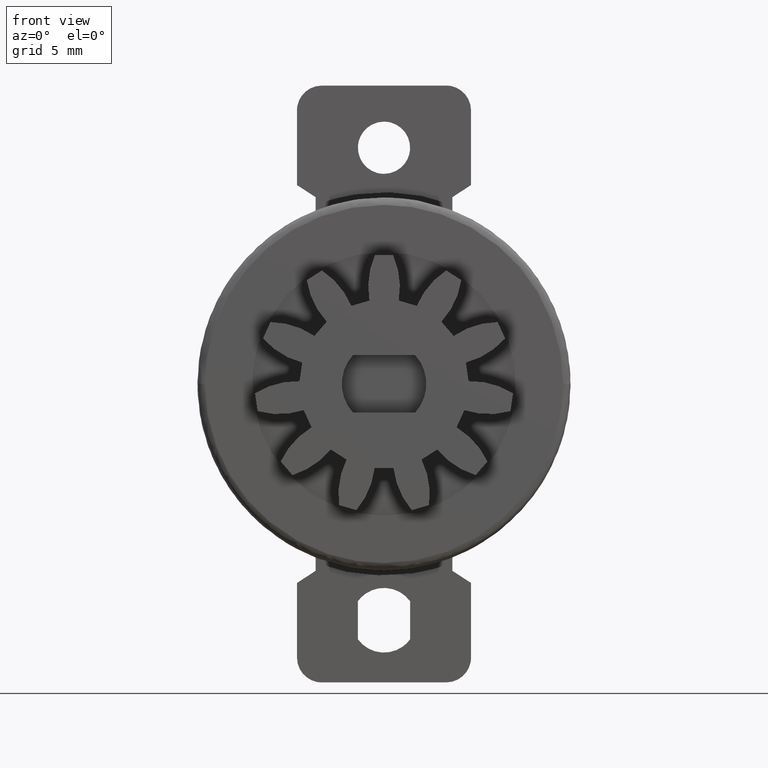
[diagram: clean part render]
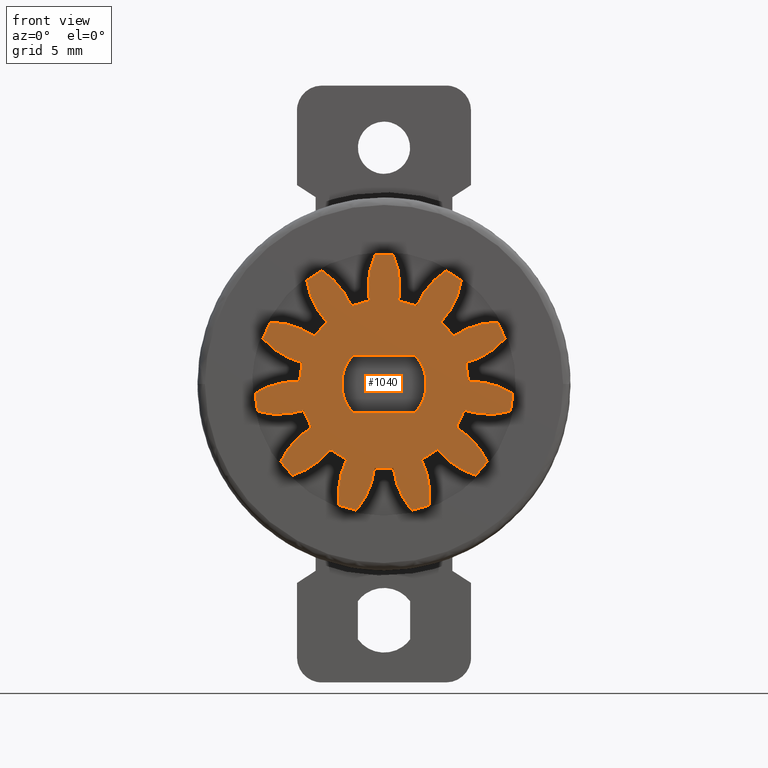
[diagram: same view with one face highlighted and labeled with its STEP entity id]
A machine part, front view. The second image highlights one B-rep face of the part: STEP entity #1040.
In plain terms, the highlighted face is a freeform B-spline surface patch.
Its self-contained STEP definition (entity closure, byte-faithful):
#250=CARTESIAN_POINT('',(-1.251998402554902,-8.0,-1.150000000000000));
#251=VERTEX_POINT('',#250);
#257=CARTESIAN_POINT('',(1.251998402554874,-8.0,-1.150000000000000));
#258=VERTEX_POINT('',#257);
#259=CARTESIAN_POINT('',(-1.251998402554902,-8.0,-1.150000000000000));
#260=CARTESIAN_POINT('',(1.251998402554874,-8.0,-1.150000000000000));
#261=QUASI_UNIFORM_CURVE('',1,(#259,#260),.UNSPECIFIED.,.F.,.U.);
#262=EDGE_CURVE('',#251,#258,#261,.T.);
#287=CARTESIAN_POINT('',(-1.251998402554904,-8.0,1.150000000000000));
#288=VERTEX_POINT('',#287);
#294=CARTESIAN_POINT('',(-1.251998402554897,-8.0,1.149999999999994));
#295=CARTESIAN_POINT('',(-2.308309654471209,-8.0,-8.673617E-016));
#296=CARTESIAN_POINT('',(-1.251998402554897,-8.0,-1.149999999999994));
#304=(BOUNDED_CURVE()B_SPLINE_CURVE(2,(#294,#295,#296),.UNSPECIFIED.,.F.,.U.)CURVE()GEOMETRIC_REPRESENTATION_ITEM()QUASI_UNIFORM_CURVE()RATIONAL_B_SPLINE_CURVE((1.0,0.736469648561704,1.0))REPRESENTATION_ITEM(''));
#305=EDGE_CURVE('',#288,#251,#304,.T.);
#317=CARTESIAN_POINT('',(1.251998402554874,-8.0,1.150000000000000));
#318=VERTEX_POINT('',#317);
#324=CARTESIAN_POINT('',(1.251998402554874,-8.0,1.150000000000000));
#325=CARTESIAN_POINT('',(-1.251998402554904,-8.0,1.150000000000000));
#326=QUASI_UNIFORM_CURVE('',1,(#324,#325),.UNSPECIFIED.,.F.,.U.);
#327=EDGE_CURVE('',#318,#288,#326,.T.);
#349=CARTESIAN_POINT('',(1.251998402554883,-8.0,-1.150000000000009));
#350=CARTESIAN_POINT('',(2.308309654471235,-8.000000000000002,-6.505213E-016));
#351=CARTESIAN_POINT('',(1.251998402554883,-8.0,1.150000000000009));
#359=(BOUNDED_CURVE()B_SPLINE_CURVE(2,(#349,#350,#351),.UNSPECIFIED.,.F.,.U.)CURVE()GEOMETRIC_REPRESENTATION_ITEM()QUASI_UNIFORM_CURVE()RATIONAL_B_SPLINE_CURVE((1.0,0.736469648561696,1.0))REPRESENTATION_ITEM(''));
#360=EDGE_CURVE('',#258,#318,#359,.T.);
#367=CARTESIAN_POINT('',(-5.704252825057263,-8.0,5.713397130031861));
#368=CARTESIAN_POINT('',(5.704253101278904,-8.0,5.713397130031861));
#369=CARTESIAN_POINT('',(-5.704252825057263,-8.0,-5.592857161430946));
#370=CARTESIAN_POINT('',(5.704253101278904,-8.0,-5.592857161430946));
#371=B_SPLINE_SURFACE_WITH_KNOTS('',1,1,((#367,#369),(#368,#370)),.UNSPECIFIED.,.F.,.F.,.U.,(2,2),(2,2),(0.0,11.408505926336170),(0.0,11.306254291462810),.UNSPECIFIED.);
#372=CARTESIAN_POINT('',(2.499333032538240,-8.0,4.559970876273580));
#373=VERTEX_POINT('',#372);
#374=CARTESIAN_POINT('',(1.313573442283980,-8.0,3.136004593702985));
#375=VERTEX_POINT('',#374);
#376=CARTESIAN_POINT('',(2.499333032538242,-8.0,4.559970876273580));
#377=CARTESIAN_POINT('',(1.687997695791056,-8.000000000000002,4.029899172562877));
#378=CARTESIAN_POINT('',(1.313573442283983,-8.0,3.136004593702983));
#386=(BOUNDED_CURVE()B_SPLINE_CURVE(2,(#376,#377,#378),.UNSPECIFIED.,.F.,.U.)CURVE()GEOMETRIC_REPRESENTATION_ITEM()QUASI_UNIFORM_CURVE()RATIONAL_B_SPLINE_CURVE((1.0,0.956011273868735,1.0))REPRESENTATION_ITEM(''));
#387=EDGE_CURVE('',#373,#375,#386,.T.);
#388=ORIENTED_EDGE('',*,*,#387,.T.);
#389=CARTESIAN_POINT('',(0.590403804067565,-8.0,3.348346360241505));
#390=VERTEX_POINT('',#389);
#391=CARTESIAN_POINT('',(1.313573442283979,-8.0,3.136004593702984));
#392=CARTESIAN_POINT('',(0.963829370197067,-8.0,3.282501357646542));
#393=CARTESIAN_POINT('',(0.590403804067566,-8.0,3.348346360241507));
#401=(BOUNDED_CURVE()B_SPLINE_CURVE(2,(#391,#392,#393),.UNSPECIFIED.,.F.,.U.)CURVE()GEOMETRIC_REPRESENTATION_ITEM()QUASI_UNIFORM_CURVE()RATIONAL_B_SPLINE_CURVE((1.0,0.993838464197460,1.0))REPRESENTATION_ITEM(''));
#402=EDGE_CURVE('',#375,#390,#401,.T.);
#403=ORIENTED_EDGE('',*,*,#402,.T.);
#404=CARTESIAN_POINT('',(0.362733663469456,-8.0,5.187333061351090));
#405=VERTEX_POINT('',#404);
#406=CARTESIAN_POINT('',(0.590403804067564,-8.0,3.348346360241504));
#407=CARTESIAN_POINT('',(0.758693978404037,-8.0,4.302767366376237));
#408=CARTESIAN_POINT('',(0.362733663469452,-8.0,5.187333061351088));
#416=(BOUNDED_CURVE()B_SPLINE_CURVE(2,(#406,#407,#408),.UNSPECIFIED.,.F.,.U.)CURVE()GEOMETRIC_REPRESENTATION_ITEM()QUASI_UNIFORM_CURVE()RATIONAL_B_SPLINE_CURVE((1.0,0.956011273868735,1.0))REPRESENTATION_ITEM(''));
#417=EDGE_CURVE('',#390,#405,#416,.T.);
#418=ORIENTED_EDGE('',*,*,#417,.T.);
#419=CARTESIAN_POINT('',(-0.362733663469452,-8.0,5.187333061351090));
#420=VERTEX_POINT('',#419);
#421=CARTESIAN_POINT('',(0.362733663469458,-8.0,5.187333061351086));
#422=CARTESIAN_POINT('',(1.029992E-015,-8.0,5.212697870022095));
#423=CARTESIAN_POINT('',(-0.362733663469451,-8.0,5.187333061351087));
#431=(BOUNDED_CURVE()B_SPLINE_CURVE(2,(#421,#422,#423),.UNSPECIFIED.,.F.,.U.)CURVE()GEOMETRIC_REPRESENTATION_ITEM()QUASI_UNIFORM_CURVE()RATIONAL_B_SPLINE_CURVE((1.0,0.997564050259824,1.0))REPRESENTATION_ITEM(''));
#432=EDGE_CURVE('',#405,#420,#431,.T.);
#433=ORIENTED_EDGE('',*,*,#432,.T.);
#434=CARTESIAN_POINT('',(-0.590403804067567,-8.0,3.348346360241505));
#435=VERTEX_POINT('',#434);
#436=CARTESIAN_POINT('',(-0.362733663469451,-8.0,5.187333061351090));
#437=CARTESIAN_POINT('',(-0.758693978404037,-8.000000000000002,4.302767366376239));
#438=CARTESIAN_POINT('',(-0.590403804067565,-8.0,3.348346360241505));
#446=(BOUNDED_CURVE()B_SPLINE_CURVE(2,(#436,#437,#438),.UNSPECIFIED.,.F.,.U.)CURVE()GEOMETRIC_REPRESENTATION_ITEM()QUASI_UNIFORM_CURVE()RATIONAL_B_SPLINE_CURVE((1.0,0.956011273868735,1.0))REPRESENTATION_ITEM(''));
#447=EDGE_CURVE('',#420,#435,#446,.T.);
#448=ORIENTED_EDGE('',*,*,#447,.T.);
#449=CARTESIAN_POINT('',(-1.313573425863900,-8.0,3.136004600580835));
#450=VERTEX_POINT('',#449);
#451=CARTESIAN_POINT('',(-0.590403804067568,-8.0,3.348346360241506));
#452=CARTESIAN_POINT('',(-0.963829361322090,-8.0,3.282501359211441));
#453=CARTESIAN_POINT('',(-1.313573425863900,-8.0,3.136004600580837));
#461=(BOUNDED_CURVE()B_SPLINE_CURVE(2,(#451,#452,#453),.UNSPECIFIED.,.F.,.U.)CURVE()GEOMETRIC_REPRESENTATION_ITEM()QUASI_UNIFORM_CURVE()RATIONAL_B_SPLINE_CURVE((1.0,0.993838464487634,1.0))REPRESENTATION_ITEM(''));
#462=EDGE_CURVE('',#435,#450,#461,.T.);
#463=ORIENTED_EDGE('',*,*,#462,.T.);
#464=CARTESIAN_POINT('',(-2.499333008662280,-8.0,4.559970889360059));
#465=VERTEX_POINT('',#464);
#466=CARTESIAN_POINT('',(-1.313573425863899,-8.0,3.136004600580835));
#467=CARTESIAN_POINT('',(-1.687997674690547,-8.0,4.029899181401207));
#468=CARTESIAN_POINT('',(-2.499333008662280,-8.0,4.559970889360058));
#476=(BOUNDED_CURVE()B_SPLINE_CURVE(2,(#466,#467,#468),.UNSPECIFIED.,.F.,.U.)CURVE()GEOMETRIC_REPRESENTATION_ITEM()QUASI_UNIFORM_CURVE()RATIONAL_B_SPLINE_CURVE((1.0,0.956011273868736,1.0))REPRESENTATION_ITEM(''));
#477=EDGE_CURVE('',#450,#465,#476,.T.);
#478=ORIENTED_EDGE('',*,*,#477,.T.);
#479=CARTESIAN_POINT('',(-3.109634960589925,-8.0,4.167753640976990));
#480=VERTEX_POINT('',#479);
#481=CARTESIAN_POINT('',(-2.499333008662279,-8.0,4.559970889360058));
#482=CARTESIAN_POINT('',(-2.818197235510442,-8.0,4.385200500079121));
#483=CARTESIAN_POINT('',(-3.109634960589921,-8.0,4.167753640976986));
#491=(BOUNDED_CURVE()B_SPLINE_CURVE(2,(#481,#482,#483),.UNSPECIFIED.,.F.,.U.)CURVE()GEOMETRIC_REPRESENTATION_ITEM()QUASI_UNIFORM_CURVE()RATIONAL_B_SPLINE_CURVE((1.0,0.997564050259824,1.0))REPRESENTATION_ITEM(''));
#492=EDGE_CURVE('',#465,#480,#491,.T.);
#493=ORIENTED_EDGE('',*,*,#492,.T.);
#494=CARTESIAN_POINT('',(-2.306931985027925,-8.0,2.497611822612775));
#495=VERTEX_POINT('',#494);
#496=CARTESIAN_POINT('',(-3.109634960589926,-8.0,4.167753640976989));
#497=CARTESIAN_POINT('',(-2.964505654421323,-8.0,3.209537316642833));
#498=CARTESIAN_POINT('',(-2.306931998105389,-8.0,2.497611810533708));
#506=(BOUNDED_CURVE()B_SPLINE_CURVE(2,(#496,#497,#498),.UNSPECIFIED.,.F.,.U.)CURVE()GEOMETRIC_REPRESENTATION_ITEM()QUASI_UNIFORM_CURVE()RATIONAL_B_SPLINE_CURVE((1.0,0.956011273868735,1.0))REPRESENTATION_ITEM(''));
#507=EDGE_CURVE('',#480,#495,#506,.T.);
#508=ORIENTED_EDGE('',*,*,#507,.T.);
#509=CARTESIAN_POINT('',(-2.800500375025975,-8.0,1.928003539799490));
#510=VERTEX_POINT('',#509);
#511=CARTESIAN_POINT('',(-2.306931985027925,-8.0,2.497611822612776));
#512=CARTESIAN_POINT('',(-2.585479067225136,-8.0,2.240330379820466));
#513=CARTESIAN_POINT('',(-2.800500375025976,-8.0,1.928003539799491));
#521=(BOUNDED_CURVE()B_SPLINE_CURVE(2,(#511,#512,#513),.UNSPECIFIED.,.F.,.U.)CURVE()GEOMETRIC_REPRESENTATION_ITEM()QUASI_UNIFORM_CURVE()RATIONAL_B_SPLINE_CURVE((1.0,0.993838464197460,1.0))REPRESENTATION_ITEM(''));
#522=EDGE_CURVE('',#495,#510,#521,.T.);
#523=ORIENTED_EDGE('',*,*,#522,.T.);
#524=CARTESIAN_POINT('',(-4.567879111273290,-8.0,2.484850181558865));
#525=VERTEX_POINT('',#524);
#526=CARTESIAN_POINT('',(-2.800500375025977,-8.0,1.928003539799488));
#527=CARTESIAN_POINT('',(-3.598761993761316,-8.0,2.477566482312406));
#528=CARTESIAN_POINT('',(-4.567879111273288,-8.0,2.484850181558858));
#536=(BOUNDED_CURVE()B_SPLINE_CURVE(2,(#526,#527,#528),.UNSPECIFIED.,.F.,.U.)CURVE()GEOMETRIC_REPRESENTATION_ITEM()QUASI_UNIFORM_CURVE()RATIONAL_B_SPLINE_CURVE((1.0,0.956011273868736,1.0))REPRESENTATION_ITEM(''));
#537=EDGE_CURVE('',#510,#525,#536,.T.);
#538=ORIENTED_EDGE('',*,*,#537,.T.);
#539=CARTESIAN_POINT('',(-4.869249130954301,-8.0,1.824941889677825));
#540=VERTEX_POINT('',#539);
#541=CARTESIAN_POINT('',(-4.567879111273292,-8.0,2.484850181558866));
#542=CARTESIAN_POINT('',(-4.741636762626956,-8.0,2.165432957964168));
#543=CARTESIAN_POINT('',(-4.869249130954294,-8.0,1.824941889677822));
#551=(BOUNDED_CURVE()B_SPLINE_CURVE(2,(#541,#542,#543),.UNSPECIFIED.,.F.,.U.)CURVE()GEOMETRIC_REPRESENTATION_ITEM()QUASI_UNIFORM_CURVE()RATIONAL_B_SPLINE_CURVE((1.0,0.997564050259824,1.0))REPRESENTATION_ITEM(''));
#552=EDGE_CURVE('',#525,#540,#551,.T.);
#553=ORIENTED_EDGE('',*,*,#552,.T.);
#554=CARTESIAN_POINT('',(-3.291025579463670,-8.0,0.853903176780484));
#555=VERTEX_POINT('',#554);
#556=CARTESIAN_POINT('',(-4.869249130954298,-8.0,1.824941889677827));
#557=CARTESIAN_POINT('',(-4.229107732881661,-8.000000000000002,1.097301848034262));
#558=CARTESIAN_POINT('',(-3.291025583934694,-8.0,0.853903159548721));
#566=(BOUNDED_CURVE()B_SPLINE_CURVE(2,(#556,#557,#558),.UNSPECIFIED.,.F.,.U.)CURVE()GEOMETRIC_REPRESENTATION_ITEM()QUASI_UNIFORM_CURVE()RATIONAL_B_SPLINE_CURVE((1.0,0.956011273868735,1.0))REPRESENTATION_ITEM(''));
#567=EDGE_CURVE('',#540,#555,#566,.T.);
#568=ORIENTED_EDGE('',*,*,#567,.T.);
#569=CARTESIAN_POINT('',(-3.398288243948785,-8.0,0.107874978746175));
#570=VERTEX_POINT('',#569);
#571=CARTESIAN_POINT('',(-3.291025579463672,-8.0,0.853903176780484));
#572=CARTESIAN_POINT('',(-3.386257447049208,-8.0,0.486870331925909));
#573=CARTESIAN_POINT('',(-3.398288243948784,-8.0,0.107874978746173));
#581=(BOUNDED_CURVE()B_SPLINE_CURVE(2,(#571,#572,#573),.UNSPECIFIED.,.F.,.U.)CURVE()GEOMETRIC_REPRESENTATION_ITEM()QUASI_UNIFORM_CURVE()RATIONAL_B_SPLINE_CURVE((1.0,0.993838464197460,1.0))REPRESENTATION_ITEM(''));
#582=EDGE_CURVE('',#555,#570,#581,.T.);
#583=ORIENTED_EDGE('',*,*,#582,.T.);
#584=CARTESIAN_POINT('',(-5.186155873497579,-8.0,-0.379192900495937));
#585=VERTEX_POINT('',#584);
#586=CARTESIAN_POINT('',(-3.398288243948785,-8.0,0.107874978746173));
#587=CARTESIAN_POINT('',(-4.366944809302277,-8.0,0.138623932012841));
#588=CARTESIAN_POINT('',(-5.186155873497574,-8.0,-0.379192900495943));
#596=(BOUNDED_CURVE()B_SPLINE_CURVE(2,(#586,#587,#588),.UNSPECIFIED.,.F.,.U.)CURVE()GEOMETRIC_REPRESENTATION_ITEM()QUASI_UNIFORM_CURVE()RATIONAL_B_SPLINE_CURVE((1.0,0.956011273868736,1.0))REPRESENTATION_ITEM(''));
#597=EDGE_CURVE('',#570,#585,#596,.T.);
#598=ORIENTED_EDGE('',*,*,#597,.T.);
#599=CARTESIAN_POINT('',(-5.082911109217150,-8.0,-1.097276016231550));
#600=VERTEX_POINT('',#599);
#601=CARTESIAN_POINT('',(-5.186155873497583,-8.0,-0.379192900495937));
#602=CARTESIAN_POINT('',(-5.159640122854289,-8.0,-0.741844246971735));
#603=CARTESIAN_POINT('',(-5.082911109217140,-8.0,-1.097276016231547));
#611=(BOUNDED_CURVE()B_SPLINE_CURVE(2,(#601,#602,#603),.UNSPECIFIED.,.F.,.U.)CURVE()GEOMETRIC_REPRESENTATION_ITEM()QUASI_UNIFORM_CURVE()RATIONAL_B_SPLINE_CURVE((1.0,0.997564050259824,1.0))REPRESENTATION_ITEM(''));
#612=EDGE_CURVE('',#585,#600,#611,.T.);
#613=ORIENTED_EDGE('',*,*,#612,.T.);
#614=CARTESIAN_POINT('',(-3.230241807389125,-8.0,-1.060913693848578));
#615=VERTEX_POINT('',#614);
#616=CARTESIAN_POINT('',(-5.082911109217149,-8.0,-1.097276016231547));
#617=CARTESIAN_POINT('',(-4.150997989776086,-8.0,-1.363319203596055));
#618=CARTESIAN_POINT('',(-3.230241801834196,-8.0,-1.060913710762080));
#626=(BOUNDED_CURVE()B_SPLINE_CURVE(2,(#616,#617,#618),.UNSPECIFIED.,.F.,.U.)CURVE()GEOMETRIC_REPRESENTATION_ITEM()QUASI_UNIFORM_CURVE()RATIONAL_B_SPLINE_CURVE((1.0,0.956011273868735,1.0))REPRESENTATION_ITEM(''));
#627=EDGE_CURVE('',#600,#615,#626,.T.);
#628=ORIENTED_EDGE('',*,*,#627,.T.);
#629=CARTESIAN_POINT('',(-2.917143608324255,-8.0,-1.746503125795350));
#630=VERTEX_POINT('',#629);
#631=CARTESIAN_POINT('',(-3.230241807389126,-8.0,-1.060913693848578));
#632=CARTESIAN_POINT('',(-3.111923015329820,-8.0,-1.421167606043154));
#633=CARTESIAN_POINT('',(-2.917143608324258,-8.0,-1.746503125795351));
#641=(BOUNDED_CURVE()B_SPLINE_CURVE(2,(#631,#632,#633),.UNSPECIFIED.,.F.,.U.)CURVE()GEOMETRIC_REPRESENTATION_ITEM()QUASI_UNIFORM_CURVE()RATIONAL_B_SPLINE_CURVE((1.0,0.993838464197460,1.0))REPRESENTATION_ITEM(''));
#642=EDGE_CURVE('',#615,#630,#641,.T.);
#643=ORIENTED_EDGE('',*,*,#642,.T.);
#644=CARTESIAN_POINT('',(-4.157864792182010,-8.0,-3.122844916087450));
#645=VERTEX_POINT('',#644);
#646=CARTESIAN_POINT('',(-2.917143608324253,-8.0,-1.746503125795355));
#647=CARTESIAN_POINT('',(-3.748653505494959,-8.0,-2.244330737159556));
#648=CARTESIAN_POINT('',(-4.157864792181999,-8.0,-3.122844916087455));
#656=(BOUNDED_CURVE()B_SPLINE_CURVE(2,(#646,#647,#648),.UNSPECIFIED.,.F.,.U.)CURVE()GEOMETRIC_REPRESENTATION_ITEM()QUASI_UNIFORM_CURVE()RATIONAL_B_SPLINE_CURVE((1.0,0.956011273868736,1.0))REPRESENTATION_ITEM(''));
#657=EDGE_CURVE('',#630,#645,#656,.T.);
#658=ORIENTED_EDGE('',*,*,#657,.T.);
#659=CARTESIAN_POINT('',(-3.682784727053384,-8.0,-3.671116540534010));
#660=VERTEX_POINT('',#659);
#661=CARTESIAN_POINT('',(-4.157864792182011,-8.0,-3.122844916087451));
#662=CARTESIAN_POINT('',(-3.939494203006015,-8.0,-3.413591145496906));
#663=CARTESIAN_POINT('',(-3.682784727053380,-8.0,-3.671116540534004));
#671=(BOUNDED_CURVE()B_SPLINE_CURVE(2,(#661,#662,#663),.UNSPECIFIED.,.F.,.U.)CURVE()GEOMETRIC_REPRESENTATION_ITEM()QUASI_UNIFORM_CURVE()RATIONAL_B_SPLINE_CURVE((1.0,0.997564050259824,1.0))REPRESENTATION_ITEM(''));
#672=EDGE_CURVE('',#645,#660,#671,.T.);
#673=ORIENTED_EDGE('',*,*,#672,.T.);
#674=CARTESIAN_POINT('',(-2.143879086929061,-8.0,-2.638897963284715));
#675=VERTEX_POINT('',#674);
#676=CARTESIAN_POINT('',(-3.682784727053387,-8.0,-3.671116540534007));
#677=CARTESIAN_POINT('',(-2.754975716603339,-8.0,-3.391096041539490));
#678=CARTESIAN_POINT('',(-2.143879073111832,-8.0,-2.638897974510035));
#686=(BOUNDED_CURVE()B_SPLINE_CURVE(2,(#676,#677,#678),.UNSPECIFIED.,.F.,.U.)CURVE()GEOMETRIC_REPRESENTATION_ITEM()QUASI_UNIFORM_CURVE()RATIONAL_B_SPLINE_CURVE((1.0,0.956011273868735,1.0))REPRESENTATION_ITEM(''));
#687=EDGE_CURVE('',#660,#675,#686,.T.);
#688=ORIENTED_EDGE('',*,*,#687,.T.);
#689=CARTESIAN_POINT('',(-1.509826490109995,-8.0,-3.046378828997160));
#690=VERTEX_POINT('',#689);
#691=CARTESIAN_POINT('',(-2.143879086929061,-8.0,-2.638897963284714));
#692=CARTESIAN_POINT('',(-1.849575015642208,-8.0,-2.877994871315443));
#693=CARTESIAN_POINT('',(-1.509826490109997,-8.0,-3.046378828997163));
#701=(BOUNDED_CURVE()B_SPLINE_CURVE(2,(#691,#692,#693),.UNSPECIFIED.,.F.,.U.)CURVE()GEOMETRIC_REPRESENTATION_ITEM()QUASI_UNIFORM_CURVE()RATIONAL_B_SPLINE_CURVE((1.0,0.993838464197460,1.0))REPRESENTATION_ITEM(''));
#702=EDGE_CURVE('',#675,#690,#701,.T.);
#703=ORIENTED_EDGE('',*,*,#702,.T.);
#704=CARTESIAN_POINT('',(-1.809481019557425,-8.0,-4.875015737396280));
#705=VERTEX_POINT('',#704);
#706=CARTESIAN_POINT('',(-1.509826490109993,-8.0,-3.046378828997160));
#707=CARTESIAN_POINT('',(-1.940191202342365,-8.0,-3.914726256122141));
#708=CARTESIAN_POINT('',(-1.809481019557416,-8.0,-4.875015737396279));
#716=(BOUNDED_CURVE()B_SPLINE_CURVE(2,(#706,#707,#708),.UNSPECIFIED.,.F.,.U.)CURVE()GEOMETRIC_REPRESENTATION_ITEM()QUASI_UNIFORM_CURVE()RATIONAL_B_SPLINE_CURVE((1.0,0.956011273868736,1.0))REPRESENTATION_ITEM(''));
#717=EDGE_CURVE('',#690,#705,#716,.T.);
#718=ORIENTED_EDGE('',*,*,#717,.T.);
#719=CARTESIAN_POINT('',(-1.113400217259094,-8.0,-5.079403503976370));
#720=VERTEX_POINT('',#719);
#721=CARTESIAN_POINT('',(-1.809481019557426,-8.0,-4.875015737396282));
#722=CARTESIAN_POINT('',(-1.468586710866862,-8.0,-5.001546976366226));
#723=CARTESIAN_POINT('',(-1.113400217259094,-8.0,-5.079403503976367));
#731=(BOUNDED_CURVE()B_SPLINE_CURVE(2,(#721,#722,#723),.UNSPECIFIED.,.F.,.U.)CURVE()GEOMETRIC_REPRESENTATION_ITEM()QUASI_UNIFORM_CURVE()RATIONAL_B_SPLINE_CURVE((1.0,0.997564050259824,1.0))REPRESENTATION_ITEM(''));
#732=EDGE_CURVE('',#705,#720,#731,.T.);
#733=ORIENTED_EDGE('',*,*,#732,.T.);
#734=CARTESIAN_POINT('',(-0.376849905398226,-8.0,-3.379050776298180));
#735=VERTEX_POINT('',#734);
#736=CARTESIAN_POINT('',(-1.113400217259096,-8.0,-5.079403503976371));
#737=CARTESIAN_POINT('',(-0.484268120555213,-8.0,-4.342223848379167));
#738=CARTESIAN_POINT('',(-0.376849887705563,-8.0,-3.379050778271362));
#746=(BOUNDED_CURVE()B_SPLINE_CURVE(2,(#736,#737,#738),.UNSPECIFIED.,.F.,.U.)CURVE()GEOMETRIC_REPRESENTATION_ITEM()QUASI_UNIFORM_CURVE()RATIONAL_B_SPLINE_CURVE((1.0,0.956011273868735,1.0))REPRESENTATION_ITEM(''));
#747=EDGE_CURVE('',#720,#735,#746,.T.);
#748=ORIENTED_EDGE('',*,*,#747,.T.);
#749=CARTESIAN_POINT('',(0.376849870012890,-8.0,-3.379050780244540));
#750=VERTEX_POINT('',#749);
#751=CARTESIAN_POINT('',(-0.376849905398227,-8.0,-3.379050776298182));
#752=CARTESIAN_POINT('',(-0.000000017912727,-8.0,-3.421079101366391));
#753=CARTESIAN_POINT('',(0.376849870012890,-8.0,-3.379050780244545));
#761=(BOUNDED_CURVE()B_SPLINE_CURVE(2,(#751,#752,#753),.UNSPECIFIED.,.F.,.U.)CURVE()GEOMETRIC_REPRESENTATION_ITEM()QUASI_UNIFORM_CURVE()RATIONAL_B_SPLINE_CURVE((1.0,0.993838464197460,1.0))REPRESENTATION_ITEM(''));
#762=EDGE_CURVE('',#735,#750,#761,.T.);
#763=ORIENTED_EDGE('',*,*,#762,.T.);
#764=CARTESIAN_POINT('',(1.113400190663386,-8.0,-5.079403509806121));
#765=VERTEX_POINT('',#764);
#766=CARTESIAN_POINT('',(0.376849870012894,-8.0,-3.379050780244539));
#767=CARTESIAN_POINT('',(0.484268097819382,-8.0,-4.342223850914779));
#768=CARTESIAN_POINT('',(1.113400190663395,-8.0,-5.079403509806110));
#776=(BOUNDED_CURVE()B_SPLINE_CURVE(2,(#766,#767,#768),.UNSPECIFIED.,.F.,.U.)CURVE()GEOMETRIC_REPRESENTATION_ITEM()QUASI_UNIFORM_CURVE()RATIONAL_B_SPLINE_CURVE((1.0,0.956011273868736,1.0))REPRESENTATION_ITEM(''));
#777=EDGE_CURVE('',#750,#765,#776,.T.);
#778=ORIENTED_EDGE('',*,*,#777,.T.);
#779=CARTESIAN_POINT('',(1.809480994031895,-8.0,-4.875015746870711));
#780=VERTEX_POINT('',#779);
#781=CARTESIAN_POINT('',(1.113400190663385,-8.0,-5.079403509806121));
#782=CARTESIAN_POINT('',(1.468586684678807,-8.0,-5.001546984055732));
#783=CARTESIAN_POINT('',(1.809480994031891,-8.0,-4.875015746870707));
#791=(BOUNDED_CURVE()B_SPLINE_CURVE(2,(#781,#782,#783),.UNSPECIFIED.,.F.,.U.)CURVE()GEOMETRIC_REPRESENTATION_ITEM()QUASI_UNIFORM_CURVE()RATIONAL_B_SPLINE_CURVE((1.0,0.997564050259824,1.0))REPRESENTATION_ITEM(''));
#792=EDGE_CURVE('',#765,#780,#791,.T.);
#793=ORIENTED_EDGE('',*,*,#792,.T.);
#794=CARTESIAN_POINT('',(1.509826458208390,-8.0,-3.046378844808030));
#795=VERTEX_POINT('',#794);
#796=CARTESIAN_POINT('',(1.809480994031889,-8.0,-4.875015746870712));
#797=CARTESIAN_POINT('',(1.940191181844909,-8.000000000000002,-3.914726266280966));
#798=CARTESIAN_POINT('',(1.509826474159192,-8.0,-3.046378836902596));
#806=(BOUNDED_CURVE()B_SPLINE_CURVE(2,(#796,#797,#798),.UNSPECIFIED.,.F.,.U.)CURVE()GEOMETRIC_REPRESENTATION_ITEM()QUASI_UNIFORM_CURVE()RATIONAL_B_SPLINE_CURVE((1.0,0.956011273868735,1.0))REPRESENTATION_ITEM(''));
#807=EDGE_CURVE('',#780,#795,#806,.T.);
#808=ORIENTED_EDGE('',*,*,#807,.T.);
#809=CARTESIAN_POINT('',(2.143879059294585,-8.0,-2.638897985735355));
#810=VERTEX_POINT('',#809);
#811=CARTESIAN_POINT('',(1.509826458208390,-8.0,-3.046378844808030));
#812=CARTESIAN_POINT('',(1.849574985503918,-8.0,-2.877994890684147));
#813=CARTESIAN_POINT('',(2.143879059294589,-8.0,-2.638897985735361));
#821=(BOUNDED_CURVE()B_SPLINE_CURVE(2,(#811,#812,#813),.UNSPECIFIED.,.F.,.U.)CURVE()GEOMETRIC_REPRESENTATION_ITEM()QUASI_UNIFORM_CURVE()RATIONAL_B_SPLINE_CURVE((1.0,0.993838464197460,1.0))REPRESENTATION_ITEM(''));
#822=EDGE_CURVE('',#795,#810,#821,.T.);
#823=ORIENTED_EDGE('',*,*,#822,.T.);
#824=CARTESIAN_POINT('',(3.682784707831450,-8.0,-3.671116559817030));
#825=VERTEX_POINT('',#824);
#826=CARTESIAN_POINT('',(2.143879059294584,-8.0,-2.638897985735353));
#827=CARTESIAN_POINT('',(2.754975698847590,-8.0,-3.391096055964505));
#828=CARTESIAN_POINT('',(3.682784707831453,-8.0,-3.671116559817021));
#836=(BOUNDED_CURVE()B_SPLINE_CURVE(2,(#826,#827,#828),.UNSPECIFIED.,.F.,.U.)CURVE()GEOMETRIC_REPRESENTATION_ITEM()QUASI_UNIFORM_CURVE()RATIONAL_B_SPLINE_CURVE((1.0,0.956011273868735,1.0))REPRESENTATION_ITEM(''));
#837=EDGE_CURVE('',#810,#825,#836,.T.);
#838=ORIENTED_EDGE('',*,*,#837,.T.);
#839=CARTESIAN_POINT('',(4.157864775830830,-8.0,-3.122844937857995));
#840=VERTEX_POINT('',#839);
#841=CARTESIAN_POINT('',(3.682784707831449,-8.0,-3.671116559817030));
#842=CARTESIAN_POINT('',(3.939494185132486,-8.0,-3.413591166124061));
#843=CARTESIAN_POINT('',(4.157864775830825,-8.0,-3.122844937857992));
#851=(BOUNDED_CURVE()B_SPLINE_CURVE(2,(#841,#842,#843),.UNSPECIFIED.,.F.,.U.)CURVE()GEOMETRIC_REPRESENTATION_ITEM()QUASI_UNIFORM_CURVE()RATIONAL_B_SPLINE_CURVE((1.0,0.997564050259824,1.0))REPRESENTATION_ITEM(''));
#852=EDGE_CURVE('',#825,#840,#851,.T.);
#853=ORIENTED_EDGE('',*,*,#852,.T.);
#854=CARTESIAN_POINT('',(2.917143590034915,-8.0,-1.746503156343610));
#855=VERTEX_POINT('',#854);
#856=CARTESIAN_POINT('',(4.157864775830827,-8.0,-3.122844937857998));
#857=CARTESIAN_POINT('',(3.748653493743679,-8.000000000000002,-2.244330756787463));
#858=CARTESIAN_POINT('',(2.917143599179587,-8.0,-1.746503141069481));
#866=(BOUNDED_CURVE()B_SPLINE_CURVE(2,(#856,#857,#858),.UNSPECIFIED.,.F.,.U.)CURVE()GEOMETRIC_REPRESENTATION_ITEM()QUASI_UNIFORM_CURVE()RATIONAL_B_SPLINE_CURVE((1.0,0.956011273868735,1.0))REPRESENTATION_ITEM(''));
#867=EDGE_CURVE('',#840,#855,#866,.T.);
#868=ORIENTED_EDGE('',*,*,#867,.T.);
#869=CARTESIAN_POINT('',(3.230241796279260,-8.0,-1.060913727675586));
#870=VERTEX_POINT('',#869);
#871=CARTESIAN_POINT('',(2.917143590034916,-8.0,-1.746503156343612));
#872=CARTESIAN_POINT('',(3.111923000447389,-8.0,-1.421167638631136));
#873=CARTESIAN_POINT('',(3.230241796279264,-8.0,-1.060913727675588));
#881=(BOUNDED_CURVE()B_SPLINE_CURVE(2,(#871,#872,#873),.UNSPECIFIED.,.F.,.U.)CURVE()GEOMETRIC_REPRESENTATION_ITEM()QUASI_UNIFORM_CURVE()RATIONAL_B_SPLINE_CURVE((1.0,0.993838464197460,1.0))REPRESENTATION_ITEM(''));
#882=EDGE_CURVE('',#855,#870,#881,.T.);
#883=ORIENTED_EDGE('',*,*,#882,.T.);
#884=CARTESIAN_POINT('',(5.082911103471810,-8.0,-1.097276042845622));
#885=VERTEX_POINT('',#884);
#886=CARTESIAN_POINT('',(3.230241796279259,-8.0,-1.060913727675587));
#887=CARTESIAN_POINT('',(4.150997982637749,-8.0,-1.363319225330629));
#888=CARTESIAN_POINT('',(5.082911103471806,-8.0,-1.097276042845613));
#896=(BOUNDED_CURVE()B_SPLINE_CURVE(2,(#886,#887,#888),.UNSPECIFIED.,.F.,.U.)CURVE()GEOMETRIC_REPRESENTATION_ITEM()QUASI_UNIFORM_CURVE()RATIONAL_B_SPLINE_CURVE((1.0,0.956011273868736,1.0))REPRESENTATION_ITEM(''));
#897=EDGE_CURVE('',#870,#885,#896,.T.);
#898=ORIENTED_EDGE('',*,*,#897,.T.);
#899=CARTESIAN_POINT('',(5.186155871512140,-8.0,-0.379192927650596));
#900=VERTEX_POINT('',#899);
#901=CARTESIAN_POINT('',(5.082911103471813,-8.0,-1.097276042845626));
#902=CARTESIAN_POINT('',(5.159640118970001,-8.0,-0.741844273987561));
#903=CARTESIAN_POINT('',(5.186155871512133,-8.0,-0.379192927650595));
#911=(BOUNDED_CURVE()B_SPLINE_CURVE(2,(#901,#902,#903),.UNSPECIFIED.,.F.,.U.)CURVE()GEOMETRIC_REPRESENTATION_ITEM()QUASI_UNIFORM_CURVE()RATIONAL_B_SPLINE_CURVE((1.0,0.997564050259824,1.0))REPRESENTATION_ITEM(''));
#912=EDGE_CURVE('',#885,#900,#911,.T.);
#913=ORIENTED_EDGE('',*,*,#912,.T.);
#914=CARTESIAN_POINT('',(3.398288245078450,-8.0,0.107874943159382));
#915=VERTEX_POINT('',#914);
#916=CARTESIAN_POINT('',(5.186155871512137,-8.0,-0.379192927650602));
#917=CARTESIAN_POINT('',(4.366944810028120,-8.0,0.138623909147569));
#918=CARTESIAN_POINT('',(3.398288244513620,-8.0,0.107874960952779));
#926=(BOUNDED_CURVE()B_SPLINE_CURVE(2,(#916,#917,#918),.UNSPECIFIED.,.F.,.U.)CURVE()GEOMETRIC_REPRESENTATION_ITEM()QUASI_UNIFORM_CURVE()RATIONAL_B_SPLINE_CURVE((1.0,0.956011273868736,1.0))REPRESENTATION_ITEM(''));
#927=EDGE_CURVE('',#900,#915,#926,.T.);
#928=ORIENTED_EDGE('',*,*,#927,.T.);
#929=CARTESIAN_POINT('',(3.291025588405720,-8.0,0.853903142316947));
#930=VERTEX_POINT('',#929);
#931=CARTESIAN_POINT('',(3.398288245078448,-8.0,0.107874943159382));
#932=CARTESIAN_POINT('',(3.386257452147703,-8.0,0.486870296465105));
#933=CARTESIAN_POINT('',(3.291025588405724,-8.0,0.853903142316948));
#941=(BOUNDED_CURVE()B_SPLINE_CURVE(2,(#931,#932,#933),.UNSPECIFIED.,.F.,.U.)CURVE()GEOMETRIC_REPRESENTATION_ITEM()QUASI_UNIFORM_CURVE()RATIONAL_B_SPLINE_CURVE((1.0,0.993838464197460,1.0))REPRESENTATION_ITEM(''));
#942=EDGE_CURVE('',#915,#930,#941,.T.);
#943=ORIENTED_EDGE('',*,*,#942,.T.);
#944=CARTESIAN_POINT('',(4.869249140509671,-8.0,1.824941864182480));
#945=VERTEX_POINT('',#944);
#946=CARTESIAN_POINT('',(3.291025588405719,-8.0,0.853903142316947));
#947=CARTESIAN_POINT('',(4.229107738627113,-8.0,1.097301825890699));
#948=CARTESIAN_POINT('',(4.869249140509663,-8.0,1.824941864182486));
#956=(BOUNDED_CURVE()B_SPLINE_CURVE(2,(#946,#947,#948),.UNSPECIFIED.,.F.,.U.)CURVE()GEOMETRIC_REPRESENTATION_ITEM()QUASI_UNIFORM_CURVE()RATIONAL_B_SPLINE_CURVE((1.0,0.956011273868736,1.0))REPRESENTATION_ITEM(''));
#957=EDGE_CURVE('',#930,#945,#956,.T.);
#958=ORIENTED_EDGE('',*,*,#957,.T.);
#959=CARTESIAN_POINT('',(4.567879124283940,-8.0,2.484850157641500));
#960=VERTEX_POINT('',#959);
#961=CARTESIAN_POINT('',(4.869249140509671,-8.0,1.824941864182479));
#962=CARTESIAN_POINT('',(4.741636773965141,-8.0,2.165432933137006));
#963=CARTESIAN_POINT('',(4.567879124283941,-8.0,2.484850157641498));
#971=(BOUNDED_CURVE()B_SPLINE_CURVE(2,(#961,#962,#963),.UNSPECIFIED.,.F.,.U.)CURVE()GEOMETRIC_REPRESENTATION_ITEM()QUASI_UNIFORM_CURVE()RATIONAL_B_SPLINE_CURVE((1.0,0.997564050259824,1.0))REPRESENTATION_ITEM(''));
#972=EDGE_CURVE('',#945,#960,#971,.T.);
#973=ORIENTED_EDGE('',*,*,#972,.T.);
#974=CARTESIAN_POINT('',(2.800500395215980,-8.0,1.928003510472720));
#975=VERTEX_POINT('',#974);
#976=CARTESIAN_POINT('',(4.567879124283938,-8.0,2.484850157641500));
#977=CARTESIAN_POINT('',(3.598762006733826,-8.0,2.477566463469340));
#978=CARTESIAN_POINT('',(2.800500385120976,-8.0,1.928003525136108));
#986=(BOUNDED_CURVE()B_SPLINE_CURVE(2,(#976,#977,#978),.UNSPECIFIED.,.F.,.U.)CURVE()GEOMETRIC_REPRESENTATION_ITEM()QUASI_UNIFORM_CURVE()RATIONAL_B_SPLINE_CURVE((1.0,0.956011273868735,1.0))REPRESENTATION_ITEM(''));
#987=EDGE_CURVE('',#960,#975,#986,.T.);
#988=ORIENTED_EDGE('',*,*,#987,.T.);
#989=CARTESIAN_POINT('',(2.306932011182850,-8.0,2.497611798454635));
#990=VERTEX_POINT('',#989);
#991=CARTESIAN_POINT('',(2.800500395215982,-8.0,1.928003510472720));
#992=CARTESIAN_POINT('',(2.585479090685821,-8.0,2.240330352745392));
#993=CARTESIAN_POINT('',(2.306932011182855,-8.0,2.497611798454641));
#1001=(BOUNDED_CURVE()B_SPLINE_CURVE(2,(#991,#992,#993),.UNSPECIFIED.,.F.,.U.)CURVE()GEOMETRIC_REPRESENTATION_ITEM()QUASI_UNIFORM_CURVE()RATIONAL_B_SPLINE_CURVE((1.0,0.993838464197460,1.0))REPRESENTATION_ITEM(''));
#1002=EDGE_CURVE('',#975,#990,#1001,.T.);
#1003=ORIENTED_EDGE('',*,*,#1002,.T.);
#1004=CARTESIAN_POINT('',(3.109634982412245,-8.0,4.167753624694965));
#1005=VERTEX_POINT('',#1004);
#1006=CARTESIAN_POINT('',(2.306932011182845,-8.0,2.497611798454638));
#1007=CARTESIAN_POINT('',(2.964505671226414,-8.0,3.209537301120711));
#1008=CARTESIAN_POINT('',(3.109634982412231,-8.0,4.167753624694967));
#1016=(BOUNDED_CURVE()B_SPLINE_CURVE(2,(#1006,#1007,#1008),.UNSPECIFIED.,.F.,.U.)CURVE()GEOMETRIC_REPRESENTATION_ITEM()QUASI_UNIFORM_CURVE()RATIONAL_B_SPLINE_CURVE((1.0,0.956011273868735,1.0))REPRESENTATION_ITEM(''));
#1017=EDGE_CURVE('',#990,#1005,#1016,.T.);
#1018=ORIENTED_EDGE('',*,*,#1017,.T.);
#1019=CARTESIAN_POINT('',(3.109634982412244,-8.0,4.167753624694963));
#1020=CARTESIAN_POINT('',(2.818197258471310,-8.0,4.385200485323069));
#1021=CARTESIAN_POINT('',(2.499333032538239,-8.0,4.559970876273576));
#1029=(BOUNDED_CURVE()B_SPLINE_CURVE(2,(#1019,#1020,#1021),.UNSPECIFIED.,.F.,.U.)CURVE()GEOMETRIC_REPRESENTATION_ITEM()QUASI_UNIFORM_CURVE()RATIONAL_B_SPLINE_CURVE((1.0,0.997564050259824,1.0))REPRESENTATION_ITEM(''));
#1030=EDGE_CURVE('',#1005,#373,#1029,.T.);
#1031=ORIENTED_EDGE('',*,*,#1030,.T.);
#1032=EDGE_LOOP('',(#388,#403,#418,#433,#448,#463,#478,#493,#508,#523,#538,#553,#568,#583,#598,#613,#628,#643,#658,#673,#688,#703,#718,#733,#748,#763,#778,#793,#808,#823,#838,#853,#868,#883,#898,#913,#928,#943,#958,#973,#988,#1003,#1018,#1031));
#1033=FACE_OUTER_BOUND('',#1032,.T.);
#1034=ORIENTED_EDGE('',*,*,#360,.F.);
#1035=ORIENTED_EDGE('',*,*,#262,.F.);
#1036=ORIENTED_EDGE('',*,*,#305,.F.);
#1037=ORIENTED_EDGE('',*,*,#327,.F.);
#1038=EDGE_LOOP('',(#1034,#1035,#1036,#1037));
#1039=FACE_BOUND('',#1038,.T.);
#1040=ADVANCED_FACE('',(#1033,#1039),#371,.F.);